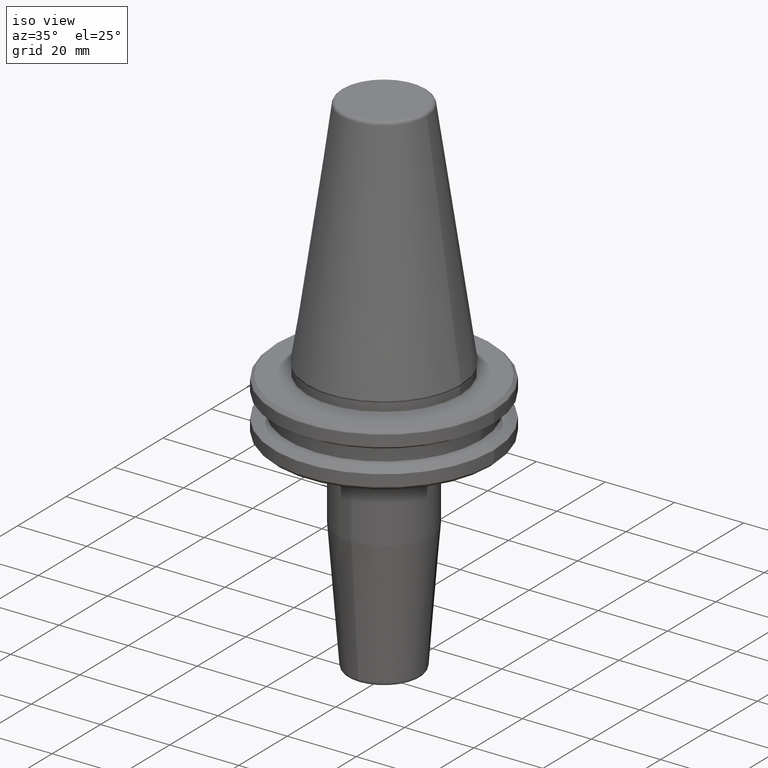
[diagram: clean part render]
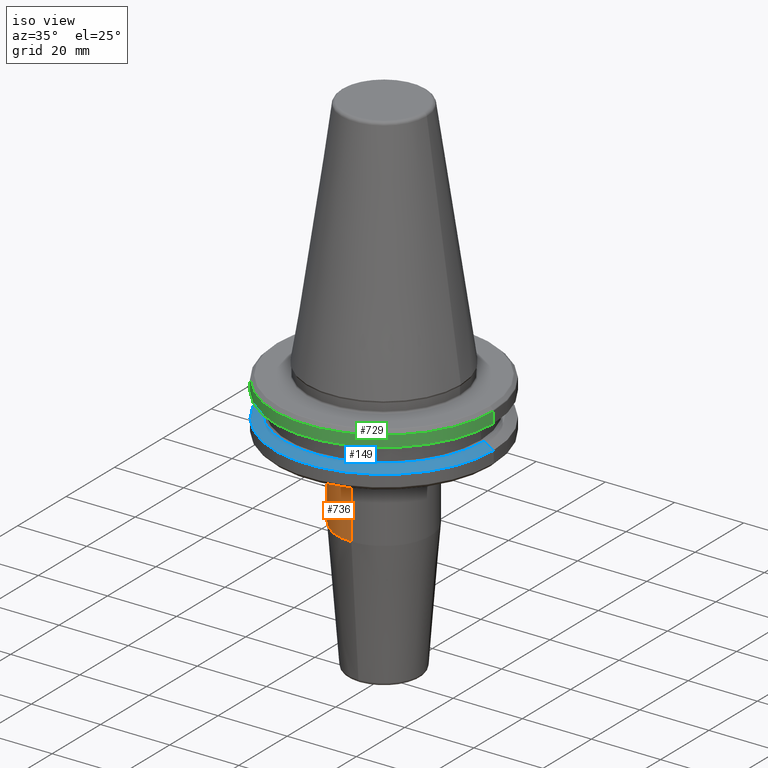
[diagram: same view with three faces highlighted in distinct colors, each labeled with its STEP entity id]
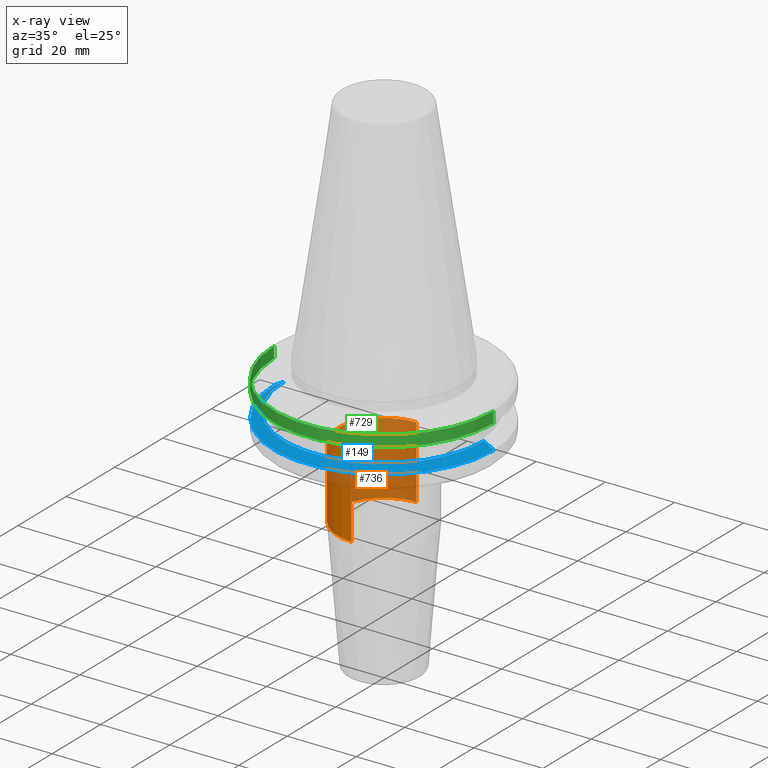
[diagram: x-ray of the same camera — body ghosted, the three highlighted faces saturated]
A machine part, iso view with three faces highlighted in distinct colors.
The next image is the same camera in x-ray (body ghosted, the three faces saturated) — at least one of them is partly hidden behind the body in this view.
Their STEP definitions:

[orange] entity #736 — the highlighted cylindrical surface (partial cylindrical patch) has radius 13.5 mm, axis along (-0, 0, -1).
#15 = AXIS2_PLACEMENT_3D ( 'NONE', #1150, #181, #279 ) ;
#34 = EDGE_CURVE ( 'NONE', #112, #1244, #832, .T. ) ;
#82 = VECTOR ( 'NONE', #901, 1000.000000000000000 ) ;
#93 = DIRECTION ( 'NONE',  ( -0.0000000000000000000, 2.829168385244881300E-016, -1.000000000000000000 ) ) ;
#112 = VERTEX_POINT ( 'NONE', #973 ) ;
#152 = ORIENTED_EDGE ( 'NONE', *, *, #34, .T. ) ;
#159 = DIRECTION ( 'NONE',  ( -0.0000000000000000000, 2.829168385244881300E-016, -1.000000000000000000 ) ) ;
#181 = DIRECTION ( 'NONE',  ( -0.0000000000000000000, 2.829168385244881300E-016, -1.000000000000000000 ) ) ;
#258 = EDGE_CURVE ( 'NONE', #1244, #947, #599, .T. ) ;
#279 = DIRECTION ( 'NONE',  ( 0.0000000000000000000, 1.000000000000000000, 0.0000000000000000000 ) ) ;
#318 = EDGE_CURVE ( 'NONE', #414, #947, #1080, .T. ) ;
#373 = CARTESIAN_POINT ( 'NONE',  ( 1.653273178848929800E-015, -13.50000000000002700, -80.00000000000000000 ) ) ;
#414 = VERTEX_POINT ( 'NONE', #586 ) ;
#417 = CARTESIAN_POINT ( 'NONE',  ( 0.0000000000000000000, 13.50000000000002700, -80.00000000000000000 ) ) ;
#511 = CARTESIAN_POINT ( 'NONE',  ( 1.653273178848931000E-015, 13.50000000000002500, -41.88138579147598500 ) ) ;
#525 = DIRECTION ( 'NONE',  ( -0.0000000000000000000, 2.829168385244881300E-016, -1.000000000000000000 ) ) ;
#579 = EDGE_CURVE ( 'NONE', #112, #414, #1093, .T. ) ;
#583 = VECTOR ( 'NONE', #93, 1000.000000000000000 ) ;
#586 = CARTESIAN_POINT ( 'NONE',  ( 0.0000000000000000000, -13.50000000000004400, -41.88138579147598500 ) ) ;
#599 = LINE ( 'NONE', #417, #82 ) ;
#626 = DIRECTION ( 'NONE',  ( 0.0000000000000000000, 1.000000000000000000, 5.139921410301638000E-016 ) ) ;
#678 = ORIENTED_EDGE ( 'NONE', *, *, #579, .F. ) ;
#736 = ADVANCED_FACE ( 'NONE', ( #1176 ), #920, .T. ) ;
#832 = CIRCLE ( 'NONE', #1112, 13.50000000000001800 ) ;
#901 = DIRECTION ( 'NONE',  ( -0.0000000000000000000, 2.829168385244881300E-016, -1.000000000000000000 ) ) ;
#913 = CARTESIAN_POINT ( 'NONE',  ( 0.0000000000000000000, -1.079123761497481700E-014, -41.88138579147598500 ) ) ;
#920 = CYLINDRICAL_SURFACE ( 'NONE', #15, 13.50000000000002700 ) ;
#947 = VERTEX_POINT ( 'NONE', #511 ) ;
#963 = CARTESIAN_POINT ( 'NONE',  ( 0.0000000000000000000, 13.50000000000000000, -20.98284271247461100 ) ) ;
#973 = CARTESIAN_POINT ( 'NONE',  ( 1.653273178848929600E-015, -13.50000000000003400, -20.98284271247461800 ) ) ;
#976 = AXIS2_PLACEMENT_3D ( 'NONE', #913, #525, #626 ) ;
#1013 = ORIENTED_EDGE ( 'NONE', *, *, #258, .T. ) ;
#1056 = ORIENTED_EDGE ( 'NONE', *, *, #318, .F. ) ;
#1080 = CIRCLE ( 'NONE', #976, 13.50000000000003400 ) ;
#1093 = LINE ( 'NONE', #373, #583 ) ;
#1112 = AXIS2_PLACEMENT_3D ( 'NONE', #1123, #159, #1233 ) ;
#1123 = CARTESIAN_POINT ( 'NONE',  ( 0.0000000000000000000, -1.670378735265370500E-014, -20.98284271247461400 ) ) ;
#1150 = CARTESIAN_POINT ( 'NONE',  ( 0.0000000000000000000, -6.839794164568140200E-018, -80.00000000000000000 ) ) ;
#1176 = FACE_OUTER_BOUND ( 'NONE', #1243, .T. ) ;
#1233 = DIRECTION ( 'NONE',  ( 0.0000000000000000000, 1.000000000000000000, 2.569960705150821900E-016 ) ) ;
#1243 = EDGE_LOOP ( 'NONE', ( #678, #152, #1013, #1056 ) ) ;
#1244 = VERTEX_POINT ( 'NONE', #963 ) ;

[blue] entity #149 — the highlighted conical surface has half-angle 60 deg.
#10 = EDGE_CURVE ( 'NONE', #254, #144, #343, .T. ) ;
#49 = VERTEX_POINT ( 'NONE', #293 ) ;
#135 = LINE ( 'NONE', #859, #878 ) ;
#144 = VERTEX_POINT ( 'NONE', #292 ) ;
#149 = ADVANCED_FACE ( 'NONE', ( #490 ), #675, .T. ) ;
#160 = VECTOR ( 'NONE', #883, 999.9999999999998900 ) ;
#196 = DIRECTION ( 'NONE',  ( 0.0000000000000000000, 0.0000000000000000000, -1.000000000000000000 ) ) ;
#215 = CARTESIAN_POINT ( 'NONE',  ( -28.94089653438085100, 0.0000000000000000000, -13.00000000000001100 ) ) ;
#251 = DIRECTION ( 'NONE',  ( 1.000000000000000000, 0.0000000000000000000, 0.0000000000000000000 ) ) ;
#254 = VERTEX_POINT ( 'NONE', #215 ) ;
#284 = DIRECTION ( 'NONE',  ( 0.8660254037844420400, 1.060575238724911000E-016, -0.4999999999999943900 ) ) ;
#288 = DIRECTION ( 'NONE',  ( -1.000000000000000000, 0.0000000000000000000, 0.0000000000000000000 ) ) ;
#292 = CARTESIAN_POINT ( 'NONE',  ( 28.94089653438085100, 3.716245608910634800E-015, -13.00000000000001100 ) ) ;
#293 = CARTESIAN_POINT ( 'NONE',  ( -31.75000000000000000, 3.888253587292846500E-015, -14.62183664205671200 ) ) ;
#343 = CIRCLE ( 'NONE', #927, 28.94089653438085100 ) ;
#399 = EDGE_CURVE ( 'NONE', #254, #49, #1195, .T. ) ;
#441 = ORIENTED_EDGE ( 'NONE', *, *, #783, .F. ) ;
#454 = ORIENTED_EDGE ( 'NONE', *, *, #399, .T. ) ;
#472 = EDGE_CURVE ( 'NONE', #49, #788, #482, .T. ) ;
#482 = CIRCLE ( 'NONE', #928, 31.75000000000000000 ) ;
#490 = FACE_OUTER_BOUND ( 'NONE', #1040, .T. ) ;
#675 = CONICAL_SURFACE ( 'NONE', #1200, 28.94089653438085100, 1.047197551196604300 ) ;
#684 = CARTESIAN_POINT ( 'NONE',  ( -28.94089653438085100, 0.0000000000000000000, -13.00000000000001100 ) ) ;
#760 = ORIENTED_EDGE ( 'NONE', *, *, #472, .T. ) ;
#783 = EDGE_CURVE ( 'NONE', #144, #788, #135, .T. ) ;
#788 = VERTEX_POINT ( 'NONE', #1162 ) ;
#859 = CARTESIAN_POINT ( 'NONE',  ( 28.94089653438085100, 3.544237630528423800E-015, -13.00000000000001100 ) ) ;
#878 = VECTOR ( 'NONE', #284, 999.9999999999998900 ) ;
#883 = DIRECTION ( 'NONE',  ( -0.8660254037844420400, 0.0000000000000000000, -0.4999999999999943900 ) ) ;
#927 = AXIS2_PLACEMENT_3D ( 'NONE', #1037, #1030, #251 ) ;
#928 = AXIS2_PLACEMENT_3D ( 'NONE', #1154, #1043, #1250 ) ;
#970 = ORIENTED_EDGE ( 'NONE', *, *, #10, .F. ) ;
#1030 = DIRECTION ( 'NONE',  ( -0.0000000000000000000, -0.0000000000000000000, 1.000000000000000000 ) ) ;
#1037 = CARTESIAN_POINT ( 'NONE',  ( 0.0000000000000000000, 0.0000000000000000000, -13.00000000000001100 ) ) ;
#1040 = EDGE_LOOP ( 'NONE', ( #441, #970, #454, #760 ) ) ;
#1043 = DIRECTION ( 'NONE',  ( -0.0000000000000000000, -0.0000000000000000000, 1.000000000000000000 ) ) ;
#1154 = CARTESIAN_POINT ( 'NONE',  ( 0.0000000000000000000, 0.0000000000000000000, -14.62183664205671200 ) ) ;
#1162 = CARTESIAN_POINT ( 'NONE',  ( 31.75000000000000000, 0.0000000000000000000, -14.62183664205671200 ) ) ;
#1175 = CARTESIAN_POINT ( 'NONE',  ( 0.0000000000000000000, 0.0000000000000000000, -13.00000000000001100 ) ) ;
#1195 = LINE ( 'NONE', #684, #160 ) ;
#1200 = AXIS2_PLACEMENT_3D ( 'NONE', #1175, #196, #288 ) ;
#1250 = DIRECTION ( 'NONE',  ( 1.000000000000000000, 0.0000000000000000000, 0.0000000000000000000 ) ) ;

[green] entity #729 — the highlighted cylindrical surface (partial cylindrical patch) has radius 31.75 mm, axis along (-0, -0, 1).
#28 = AXIS2_PLACEMENT_3D ( 'NONE', #570, #658, #855 ) ;
#108 = LINE ( 'NONE', #776, #1109 ) ;
#119 = AXIS2_PLACEMENT_3D ( 'NONE', #158, #1095, #936 ) ;
#158 = CARTESIAN_POINT ( 'NONE',  ( 0.0000000000000000000, 0.0000000000000000000, -7.578163357943284800 ) ) ;
#170 = CYLINDRICAL_SURFACE ( 'NONE', #28, 31.75000000000000000 ) ;
#186 = DIRECTION ( 'NONE',  ( -0.0000000000000000000, -0.0000000000000000000, 1.000000000000000000 ) ) ;
#189 = CARTESIAN_POINT ( 'NONE',  ( 31.75000000000000000, 0.0000000000000000000, -4.365685424949250000 ) ) ;
#203 = ORIENTED_EDGE ( 'NONE', *, *, #596, .T. ) ;
#218 = VECTOR ( 'NONE', #186, 1000.000000000000000 ) ;
#286 = CARTESIAN_POINT ( 'NONE',  ( 31.75000000000000000, 0.0000000000000000000, 113.5216080541959500 ) ) ;
#315 = CIRCLE ( 'NONE', #119, 31.75000000000000000 ) ;
#354 = EDGE_CURVE ( 'NONE', #665, #604, #484, .T. ) ;
#360 = EDGE_CURVE ( 'NONE', #1196, #604, #990, .T. ) ;
#369 = ORIENTED_EDGE ( 'NONE', *, *, #803, .F. ) ;
#469 = CARTESIAN_POINT ( 'NONE',  ( 31.75000000000000000, 0.0000000000000000000, -7.578163357943284800 ) ) ;
#484 = LINE ( 'NONE', #286, #218 ) ;
#491 = DIRECTION ( 'NONE',  ( -0.0000000000000000000, -0.0000000000000000000, 1.000000000000000000 ) ) ;
#509 = VERTEX_POINT ( 'NONE', #677 ) ;
#570 = CARTESIAN_POINT ( 'NONE',  ( 0.0000000000000000000, 0.0000000000000000000, 113.5216080541959500 ) ) ;
#596 = EDGE_CURVE ( 'NONE', #509, #665, #315, .T. ) ;
#604 = VERTEX_POINT ( 'NONE', #189 ) ;
#622 = ORIENTED_EDGE ( 'NONE', *, *, #354, .T. ) ;
#658 = DIRECTION ( 'NONE',  ( -0.0000000000000000000, -0.0000000000000000000, 1.000000000000000000 ) ) ;
#665 = VERTEX_POINT ( 'NONE', #469 ) ;
#666 = CARTESIAN_POINT ( 'NONE',  ( 0.0000000000000000000, 0.0000000000000000000, -4.365685424949250000 ) ) ;
#677 = CARTESIAN_POINT ( 'NONE',  ( -31.75000000000000000, 3.888253587292846500E-015, -7.578163357943284800 ) ) ;
#729 = ADVANCED_FACE ( 'NONE', ( #949 ), #170, .T. ) ;
#776 = CARTESIAN_POINT ( 'NONE',  ( -31.75000000000000000, 3.888253587292846500E-015, 113.5216080541959500 ) ) ;
#803 = EDGE_CURVE ( 'NONE', #509, #1196, #108, .T. ) ;
#813 = DIRECTION ( 'NONE',  ( -0.0000000000000000000, -0.0000000000000000000, 1.000000000000000000 ) ) ;
#855 = DIRECTION ( 'NONE',  ( 1.000000000000000000, 0.0000000000000000000, 0.0000000000000000000 ) ) ;
#858 = EDGE_LOOP ( 'NONE', ( #369, #203, #622, #1241 ) ) ;
#936 = DIRECTION ( 'NONE',  ( 1.000000000000000000, 0.0000000000000000000, 0.0000000000000000000 ) ) ;
#949 = FACE_OUTER_BOUND ( 'NONE', #858, .T. ) ;
#990 = CIRCLE ( 'NONE', #1224, 31.75000000000000000 ) ;
#1064 = DIRECTION ( 'NONE',  ( 1.000000000000000000, 0.0000000000000000000, 0.0000000000000000000 ) ) ;
#1095 = DIRECTION ( 'NONE',  ( -0.0000000000000000000, -0.0000000000000000000, 1.000000000000000000 ) ) ;
#1109 = VECTOR ( 'NONE', #813, 1000.000000000000000 ) ;
#1196 = VERTEX_POINT ( 'NONE', #1229 ) ;
#1224 = AXIS2_PLACEMENT_3D ( 'NONE', #666, #491, #1064 ) ;
#1229 = CARTESIAN_POINT ( 'NONE',  ( -31.75000000000000000, 3.888253587292846500E-015, -4.365685424949250000 ) ) ;
#1241 = ORIENTED_EDGE ( 'NONE', *, *, #360, .F. ) ;